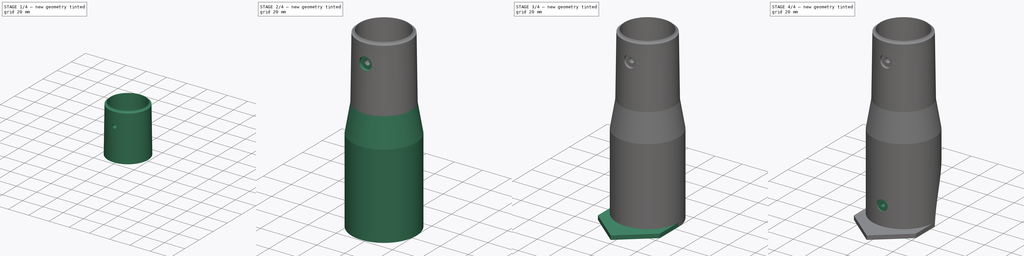
[diagram: build sequence overview — one tinted view per stage of 4, left to right]
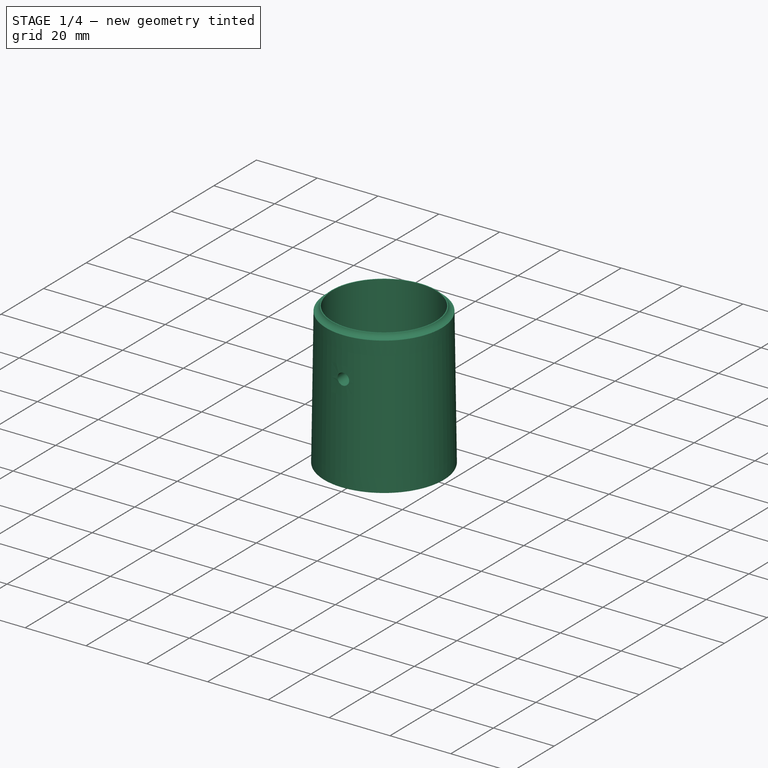
[diagram: stage 1 of 4 — iso view after this stage's code; geometry added in this stage tinted green]
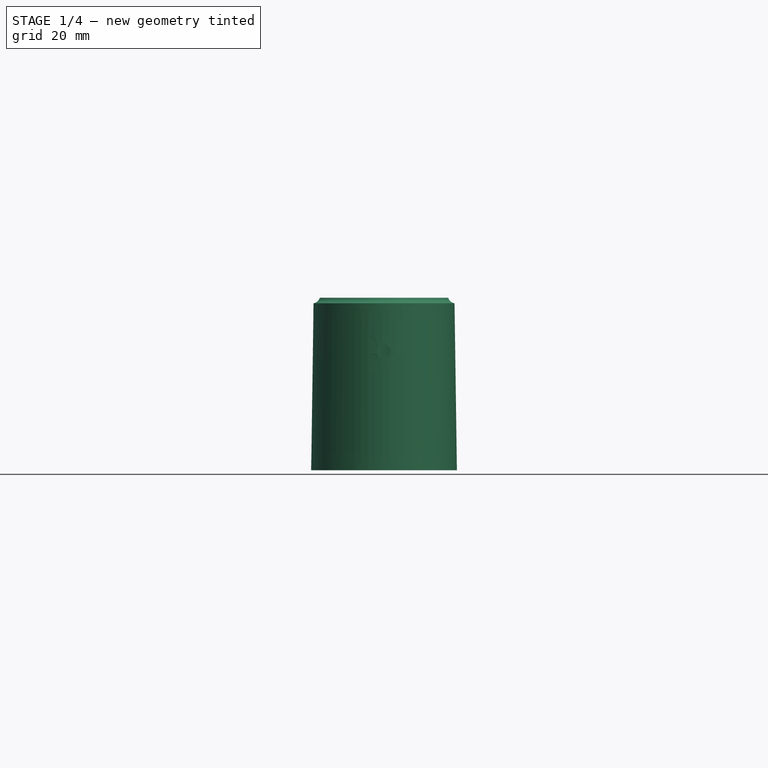
[diagram: stage 1 of 4 — front view after this stage's code; geometry added in this stage tinted green]
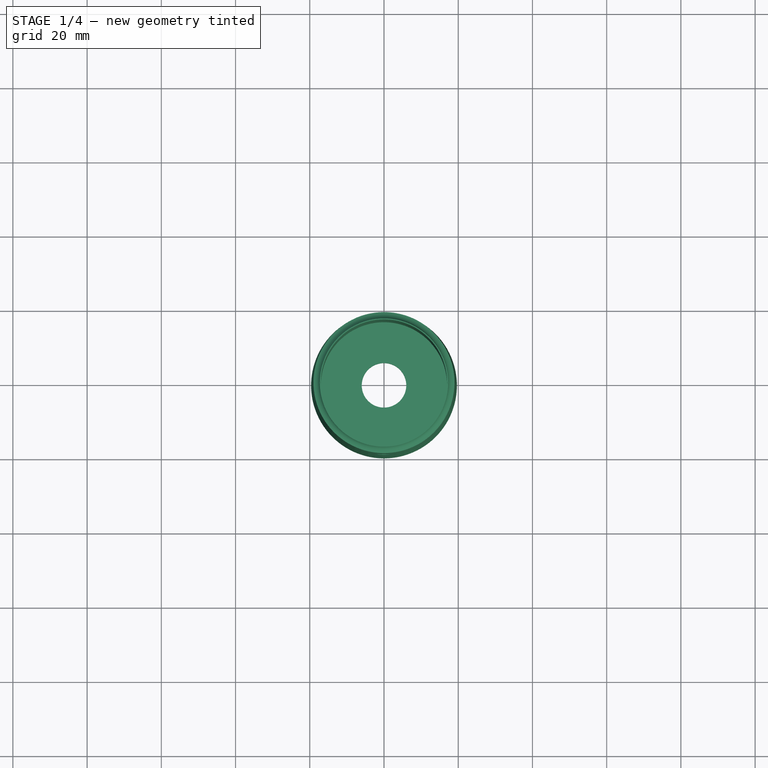
[diagram: stage 1 of 4 — top view after this stage's code; geometry added in this stage tinted green]
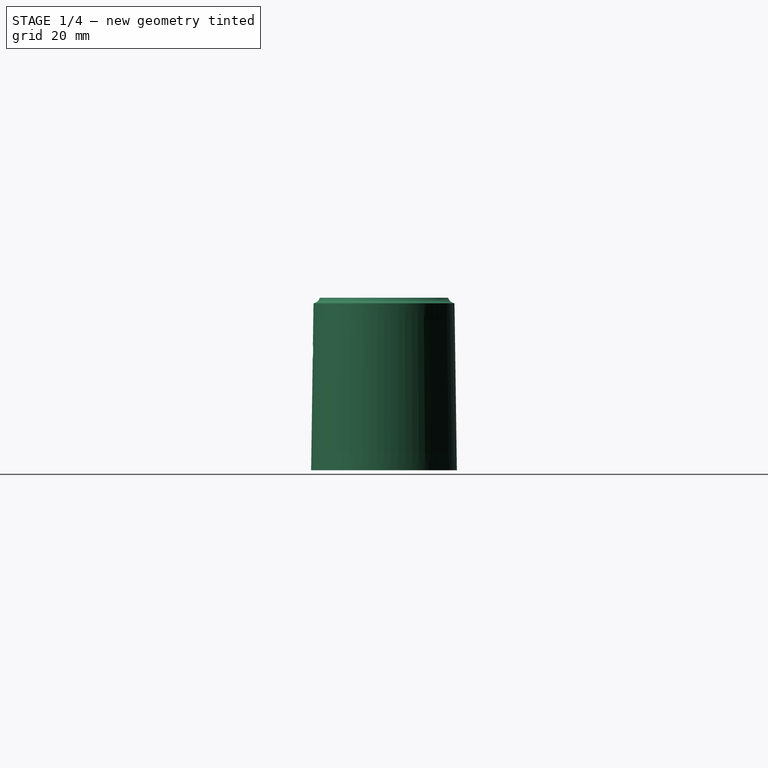
[diagram: stage 1 of 4 — right view after this stage's code; geometry added in this stage tinted green]
FCSTD DOCUMENT  (FreeCAD 1.1R20260414 (Git shallow))
Label: top-mast-mount-variable-diameter
License: All rights reserved
LicenseURL: https://en.wikipedia.org/wiki/All_rights_reserved
objects: Sketcher::SketchObject×14, PartDesign::Pocket×5, PartDesign::Pad×3, App::VarSet×1, PartDesign::Revolution×1, PartDesign::AdditiveLoft×1, PartDesign::Groove×1, PartDesign::SubtractivePipe×1, App::Point×1, PartDesign::Body×1
note: 65 computed .brp shape members not serialized (recipe doc carries the construction recipe); baked Part::Feature solids carry a one-line shape summary decoded from their .brp

FEATURE [App::VarSet] VarSet  label="Mast Mount Dimensions"
  Cable_Diameter = 4
  Mast_Diameter = 34
  Receptacle_Internal_Length = 42
  Sleeve_Wall_Thickness = 6
  Zip_Ties_Thickness = 1.8
FEATURE [Sketcher::SketchObject] Sketch169
  ArcFitTolerance = 1e-06
  AttachmentOffset = pos=(0,0,28) rot=(0,0,1;0rad)
  AttachmentSupport = -> [XZ_Plane028]
  ExternalTypes = [0]
  FullyConstrained = true
  MakeInternals = false
  MapMode = 5
  Placement = pos=(0,-28,6.2e-15) rot=(1,0,0;1.5708rad)
  _ExternalGeoVersion = 0
  expr: .AttachmentOffset.Base.z = <<Mast Mount Dimensions>>.Mast_Diameter / 2 + <<Mast Mount Dimensions>>.Sleeve_Wall_Thickness + 5 mm
  sketch-geometry (1):
    g0: Circle CenterX=0 CenterY=-63 CenterZ=0 NormalX=0 NormalY=0 NormalZ=1 AngleXU=0 Radius=1.5
  constraints (3):
    c: Diameter(g0) = 3
    c: PointOnObject(g0,g-2)
    c: Distance(g0,g-1) = 63
FEATURE [Sketcher::SketchObject] Sketch170
  ArcFitTolerance = 1e-06
  AttachmentOffset = pos=(0,0,28) rot=(0,0,1;0rad)
  AttachmentSupport = -> [XZ_Plane028]
  ExternalGeometry = -> [Sketch169]
  ExternalTypes = [0]
  FullyConstrained = true
  MakeInternals = false
  MapMode = 5
  Placement = pos=(0,-28,6.2e-15) rot=(1,0,0;1.5708rad)
  _ExternalGeoVersion = 0
  expr: .AttachmentOffset.Base.z = <<Mast Mount Dimensions>>.Mast_Diameter / 2 + <<Mast Mount Dimensions>>.Sleeve_Wall_Thickness + 5 mm
  sketch-geometry (1):
    g0: Circle CenterX=0 CenterY=-63 CenterZ=0 NormalX=0 NormalY=0 NormalZ=1 AngleXU=0 Radius=4
  constraints (2):
    c: Diameter(g0) = 8
    c: Coincident(g0,g-3)
FEATURE [Sketcher::SketchObject] Sketch157
  ArcFitTolerance = 1e-06
  AttachmentSupport = -> [YZ_Plane028]
  ExternalTypes = [0]
  FullyConstrained = true
  MakeInternals = false
  MapMode = 5
  Placement = pos=(0,0,0) rot=(0.57735,0.57735,0.57735;2.0944rad)
  _ExternalGeoVersion = 0
  expr: Constraints[8] = 68 mm + <<Mast Mount Dimensions>>.Mast_Diameter / 2
  sketch-geometry (4):
    g0: ArcOfCircle CenterX=80 CenterY=-165 CenterZ=0 NormalX=0 NormalY=0 NormalZ=1 AngleXU=0 Radius=80 StartAngle=3.14159 EndAngle=6.28319
    g1: ArcOfCircle CenterX=80 CenterY=-85 CenterZ=0 NormalX=0 NormalY=0 NormalZ=1 AngleXU=0 Radius=80 StartAngle=0 EndAngle=3.14159
    g2: LineSegment StartX=-1.42e-14 StartY=-165 StartZ=0 EndX=0 EndY=-85 EndZ=0
    g3: LineSegment StartX=160 StartY=-165 StartZ=0 EndX=160 EndY=-85 EndZ=0
  constraints (10):
    c: Tangent(g0,g2) = 1.5708
    c: Tangent(g0,g3) = -1.5708
    c: Tangent(g1,g2) = 1.5708
    c: Tangent(g1,g3) = -1.5708
    c: Equal(g0,g1)
    c: Vertical(g3)
    c: Distance(g0,g1) = 80
    c: Radius(g0) = 80
    c: Distance(g1,g-1) = 85
    c: Distance(g1,g-2) = 80
FEATURE [Sketcher::SketchObject] Sketch168
  ArcFitTolerance = 1e-06
  AttachmentOffset = pos=(0,0,-80) rot=(0,0,1;0rad)
  AttachmentSupport = -> [XY_Plane028]
  ExternalTypes = [0]
  FullyConstrained = true
  MakeInternals = false
  MapMode = 5
  Placement = pos=(0,0,-80) rot=(0,0,1;0rad)
  _ExternalGeoVersion = 0
  expr: Constraints[13] = <<Mast Mount Dimensions>>.Mast_Diameter + <<Mast Mount Dimensions>>.Sleeve_Wall_Thickness * 2
  expr: Constraints[20] = <<Mast Mount Dimensions>>.Mast_Diameter / 2 + <<Mast Mount Dimensions>>.Sleeve_Wall_Thickness / 2 - 0.15 mm
  sketch-geometry (8):
    g0: LineSegment StartX=0 StartY=-39.1493 StartZ=0 EndX=23 EndY=-19.85 EndZ=0
    g1: LineSegment StartX=23 StartY=-19.85 StartZ=0 EndX=23 EndY=-7.1e-15 EndZ=0
    g2: LineSegment StartX=-23 StartY=0 StartZ=0 EndX=-23 EndY=-19.85 EndZ=0
    g3: LineSegment StartX=-23 StartY=-19.85 StartZ=0 EndX=0 EndY=-39.1493 EndZ=0
    g4: LineSegment [constr] StartX=-23 StartY=0 StartZ=0 EndX=0 EndY=0 EndZ=0
    g5: LineSegment [constr] StartX=0 StartY=0 StartZ=0 EndX=23 EndY=-5.6e-15 EndZ=0
    g6: LineSegment [constr] StartX=-23 StartY=-19.85 StartZ=0 EndX=23 EndY=-19.85 EndZ=0
    g7: ArcOfCircle CenterX=0 CenterY=0 CenterZ=0 NormalX=0 NormalY=0 NormalZ=1 AngleXU=0 Radius=23 StartAngle=3.14159 EndAngle=6.28319
  constraints (22):
    c: PointOnObject(g0,g-2)
    c: Coincident(g1,g0)
    c: PointOnObject(g1,g-1)
    c: Vertical(g1)
    c: PointOnObject(g2,g-1)
    c: Vertical(g2)
    c: Coincident(g3,g2)
    c: Coincident(g3,g0)
    c: Coincident(g4,g2)
    c: Coincident(g4,g-1)
    c: Coincident(g5,g4)
    c: Coincident(g5,g1)
    c: Equal(g5,g4)
    c: DistanceX(g2,g1) = 46
    c: Coincident(g6,g2)
    c: Coincident(g6,g0)
    c: Horizontal(g6)
    c: Coincident(g7,g4)
    c: Coincident(g7,g1)
    c: PointOnObject(g7,g-1)
    c: DistanceY(g1,g1) = 19.85
    c: Angle(g6,g0) = 0.698132
FEATURE [Sketcher::SketchObject] Sketch167
  ArcFitTolerance = 1e-06
  AttachmentSupport = -> [YZ_Plane028]
  ExternalTypes = [0]
  FullyConstrained = true
  MakeInternals = false
  MapMode = 5
  Placement = pos=(0,0,0) rot=(0.57735,0.57735,0.57735;2.0944rad)
  _ExternalGeoVersion = 0
  expr: Constraints[2] = <<Mast Mount Dimensions>>.Mast_Diameter / 2 + <<Mast Mount Dimensions>>.Sleeve_Wall_Thickness / 2 - 0.15 mm
  sketch-geometry (2):
    g0: LineSegment StartX=9.65 StartY=8.56 StartZ=0 EndX=19.85 EndY=-20 EndZ=0
    g1: LineSegment StartX=19.85 StartY=-20 StartZ=0 EndX=19.85 EndY=-50 EndZ=0
  constraints (7):
    c: Coincident(g1,g0)
    c: Vertical(g1)
    c: Distance(g-2,g1) = 19.85
    c: Distance(g0,g-2) = 9.65
    c: DistanceY(g-1,g0) = 8.56
    c: Distance(g0,g-1) = 20
    c: DistanceY(g1,g1) = 30
FEATURE [Sketcher::SketchObject] Sketch166
  ArcFitTolerance = 1e-06
  AttachmentOffset = pos=(0,0,-40) rot=(0,0,1;0rad)
  AttachmentSupport = -> [XY_Plane028]
  ExternalTypes = [0]
  FullyConstrained = true
  MakeInternals = false
  MapMode = 5
  Placement = pos=(0,0,-40) rot=(0,0,1;0rad)
  _ExternalGeoVersion = 0
  expr: Constraints[5] = <<Mast Mount Dimensions>>.Cable_Diameter / 2
  expr: Constraints[8] = <<Mast Mount Dimensions>>.Mast_Diameter / 2 + <<Mast Mount Dimensions>>.Sleeve_Wall_Thickness / 2 - 0.15 mm
  sketch-geometry (6):
    g0: ArcOfCircle CenterX=-2 CenterY=19.85 CenterZ=0 NormalX=0 NormalY=0 NormalZ=1 AngleXU=0 Radius=2 StartAngle=1.5708 EndAngle=4.71239
    g1: ArcOfCircle CenterX=2 CenterY=19.85 CenterZ=0 NormalX=0 NormalY=0 NormalZ=1 AngleXU=0 Radius=2 StartAngle=4.71239 EndAngle=7.85398
    g2: LineSegment StartX=-2 StartY=21.85 StartZ=0 EndX=2 EndY=21.85 EndZ=0
    g3: LineSegment StartX=-2 StartY=17.85 StartZ=0 EndX=2 EndY=17.85 EndZ=0
    g4: LineSegment [constr] StartX=-2 StartY=19.85 StartZ=0 EndX=0 EndY=19.85 EndZ=0
    g5: LineSegment [constr] StartX=0 StartY=19.85 StartZ=0 EndX=2 EndY=19.85 EndZ=0
  constraints (15):
    c: Tangent(g0,g2) = 1.5708
    c: Tangent(g0,g3) = -1.5708
    c: Tangent(g1,g2) = 1.5708
    c: Tangent(g1,g3) = -1.5708
    c: Equal(g0,g1)
    c: Radius(g0) = 2
    c: Horizontal(g2)
    c: DistanceX(g0,g1) = 4
    c: Distance(g1,g-1) = 19.85
    c: Coincident(g4,g0)
    c: PointOnObject(g4,g-2)
    c: Horizontal(g4)
    c: Coincident(g5,g4)
    c: Coincident(g5,g1)
    c: Equal(g5,g4)
FEATURE [Sketcher::SketchObject] Sketch158
  ArcFitTolerance = 1e-06
  AttachmentSupport = -> [XZ_Plane028]
  ExternalTypes = [0]
  FullyConstrained = true
  MakeInternals = false
  MapMode = 5
  Placement = pos=(0,0,0) rot=(1,0,0;1.5708rad)
  _ExternalGeoVersion = 0
  expr: Constraints[12] = <<Mast Mount Dimensions>>.Zip_Ties_Thickness
  expr: Constraints[15] = <<Mast Mount Dimensions>>.Mast_Diameter / 2 + <<Mast Mount Dimensions>>.Sleeve_Wall_Thickness / 2
  sketch-geometry (12):
    g0: LineSegment [constr] StartX=0 StartY=-54 StartZ=0 EndX=20 EndY=-54 EndZ=0
    g1: LineSegment StartX=19.1 StartY=-58 StartZ=0 EndX=20.9 EndY=-58 EndZ=0
    g2: LineSegment StartX=20.9 StartY=-58 StartZ=0 EndX=20.9 EndY=-50 EndZ=0
    g3: LineSegment StartX=20.9 StartY=-50 StartZ=0 EndX=19.1 EndY=-50 EndZ=0
    g4: LineSegment StartX=19.1 StartY=-50 StartZ=0 EndX=19.1 EndY=-58 EndZ=0
    g5: GeomPoint [constr] X=20 Y=-54 Z=0
    g6: LineSegment StartX=19.1 StartY=-78 StartZ=0 EndX=20.9 EndY=-78 EndZ=0
    g7: LineSegment StartX=20.9 StartY=-78 StartZ=0 EndX=20.9 EndY=-70 EndZ=0
    g8: LineSegment StartX=20.9 StartY=-70 StartZ=0 EndX=19.1 EndY=-70 EndZ=0
    g9: LineSegment StartX=19.1 StartY=-70 StartZ=0 EndX=19.1 EndY=-78 EndZ=0
    g10: GeomPoint [constr] X=20 Y=-74 Z=0
    g11: LineSegment [constr] StartX=20 StartY=-74 StartZ=0 EndX=0 EndY=-74 EndZ=0
  constraints (32):
    c: PointOnObject(g0,g-2)
    c: Horizontal(g0)
    c: Distance(g0,g-1) = 54
    c: Coincident(g1,g2)
    c: Coincident(g2,g3)
    c: Coincident(g3,g4)
    c: Coincident(g4,g1)
    c: Horizontal(g1)
    c: Horizontal(g3)
    c: Vertical(g2)
    c: Vertical(g4)
    c: Symmetric(g3,g1,g5)
    c: Distance(g2,g4) = 1.8
    c: Distance(g1,g3) = 8
    c: Coincident(g5,g0)
    c: DistanceX(g0,g0) = 20
    c: Coincident(g6,g7)
    c: Coincident(g7,g8)
    c: Coincident(g8,g9)
    c: Coincident(g9,g6)
    c: Horizontal(g6)
    c: Horizontal(g8)
    c: Vertical(g7)
    c: Vertical(g9)
    c: Symmetric(g8,g6,g10)
    c: Equal(g8,g3)
    c: Equal(g2,g7)
    c: Coincident(g11,g10)
    c: PointOnObject(g11,g-2)
    c: Horizontal(g11)
    c: Equal(g11,g0)
    c: DistanceY(g10,g0) = 20
FEATURE [Sketcher::SketchObject] Sketch156
  ArcFitTolerance = 1e-06
  AttachmentOffset = pos=(0,0,-20) rot=(0,0,1;0rad)
  AttachmentSupport = -> [XY_Plane028]
  ExternalTypes = [0]
  FullyConstrained = true
  MakeInternals = false
  MapMode = 5
  Placement = pos=(0,0,-20) rot=(0,0,1;0rad)
  _ExternalGeoVersion = 0
  expr: Constraints[1] = <<Mast Mount Dimensions>>.Mast_Diameter + 0.2 mm
  expr: Constraints[3] = <<Mast Mount Dimensions>>.Mast_Diameter + <<Mast Mount Dimensions>>.Sleeve_Wall_Thickness * 2
  sketch-geometry (2):
    g0: Circle CenterX=0 CenterY=0 CenterZ=0 NormalX=0 NormalY=0 NormalZ=1 AngleXU=0 Radius=17.1
    g1: Circle CenterX=0 CenterY=0 CenterZ=0 NormalX=0 NormalY=0 NormalZ=1 AngleXU=0 Radius=23
  constraints (4):
    c: Coincident(g0,g-1)
    c: Diameter(g0) = 34.2
    c: Coincident(g1,g0)
    c: Diameter(g1) = 46
FEATURE [Sketcher::SketchObject] Sketch164
  ArcFitTolerance = 1e-06
  AttachmentOffset = pos=(0,0,-20) rot=(0,0,1;0rad)
  AttachmentSupport = -> [XY_Plane028]
  ExternalTypes = [0]
  FullyConstrained = true
  MakeInternals = false
  MapMode = 5
  Placement = pos=(0,0,-20) rot=(0,0,1;0rad)
  _ExternalGeoVersion = 0
  expr: Constraints[2] = <<Mast Mount Dimensions>>.Mast_Diameter + <<Mast Mount Dimensions>>.Sleeve_Wall_Thickness * 2
  expr: Constraints[3] = <<Mast Mount Dimensions>>.Mast_Diameter
  sketch-geometry (2):
    g0: Circle CenterX=0 CenterY=0 CenterZ=0 NormalX=0 NormalY=0 NormalZ=1 AngleXU=0 Radius=23
    g1: Circle CenterX=0 CenterY=0 CenterZ=0 NormalX=0 NormalY=0 NormalZ=1 AngleXU=0 Radius=17
  constraints (4):
    c: Coincident(g0,g-1)
    c: Coincident(g1,g0)
    c: Diameter(g0) = 46
    c: Diameter(g1) = 34
FEATURE [Sketcher::SketchObject] Sketch152
  ArcFitTolerance = 1e-06
  AttachmentSupport = -> [XY_Plane028]
  ExternalTypes = [0]
  FullyConstrained = true
  MakeInternals = false
  MapMode = 5
  _ExternalGeoVersion = 0
  sketch-geometry (2):
    g0: Circle CenterX=0 CenterY=0 CenterZ=0 NormalX=0 NormalY=0 NormalZ=1 AngleXU=0 Radius=19.6
    g1: Circle CenterX=0 CenterY=0 CenterZ=0 NormalX=0 NormalY=0 NormalZ=1 AngleXU=0 Radius=6
  constraints (4):
    c: Diameter(g0) = 39.2
    c: Coincident(g0,g-1)
    c: Diameter(g1) = 12
    c: Coincident(g1,g0)
FEATURE [Sketcher::SketchObject] Sketch148
  ArcFitTolerance = 1e-06
  AttachmentOffset = pos=(0,0,20) rot=(0,0,1;0rad)
  AttachmentSupport = -> [XZ_Plane028]
  ExternalTypes = [0]
  FullyConstrained = true
  MakeInternals = false
  MapMode = 5
  Placement = pos=(0,-20,4.4e-15) rot=(1,0,0;1.5708rad)
  _ExternalGeoVersion = 0
  expr: Constraints[2] = <<Mast Mount Dimensions>>.Receptacle_Internal_Length - 10 mm
  sketch-geometry (1):
    g0: Circle CenterX=0 CenterY=32 CenterZ=0 NormalX=0 NormalY=0 NormalZ=1 AngleXU=0 Radius=1.9
  constraints (3):
    c: Diameter(g0) = 3.8
    c: PointOnObject(g0,g-2)
    c: Distance(g0,g-1) = 32
FEATURE [Sketcher::SketchObject] Sketch149
  ArcFitTolerance = 1e-06
  AttachmentOffset = pos=(0,0,20) rot=(0,0,1;0rad)
  AttachmentSupport = -> [XZ_Plane028]
  ExternalGeometry = -> [Sketch148]
  ExternalTypes = [0]
  FullyConstrained = true
  MakeInternals = false
  MapMode = 5
  Placement = pos=(0,-20,4.4e-15) rot=(1,0,0;1.5708rad)
  _ExternalGeoVersion = 0
  sketch-geometry (1):
    g0: Circle CenterX=0 CenterY=32 CenterZ=0 NormalX=0 NormalY=0 NormalZ=1 AngleXU=0 Radius=4.5
  constraints (2):
    c: Diameter(g0) = 9
    c: Coincident(g0,g-3)
FEATURE [Sketcher::SketchObject] Sketch141
  ArcFitTolerance = 1e-06
  AttachmentOffset = pos=(0,0,0) rot=(0,0,1;1.5708rad)
  AttachmentSupport = -> [XY_Plane028]
  ExternalTypes = [0]
  FullyConstrained = true
  MakeInternals = false
  MapMode = 2
  Placement = pos=(0,0,0) rot=(0,0,1;1.5708rad)
  _ExternalGeoVersion = 0
  sketch-geometry (4):
    g0: LineSegment [constr] StartX=0 StartY=0 StartZ=0 EndX=-14 EndY=0 EndZ=0
    g1: LineSegment StartX=-14 StartY=0 StartZ=0 EndX=-14 EndY=12.8452 EndZ=0
    g2: LineSegment StartX=-14 StartY=0 StartZ=0 EndX=-14 EndY=-12.8452 EndZ=0
    g3: ArcOfCircle CenterX=0 CenterY=0 CenterZ=0 NormalX=0 NormalY=0 NormalZ=1 AngleXU=0 Radius=19 StartAngle=2.39918 EndAngle=3.884
  constraints (11):
    c: Distance(g0) = 14
    c: Coincident(g0,g-1)
    c: PointOnObject(g0,g-1)
    c: Coincident(g1,g0)
    c: Vertical(g1)
    c: Coincident(g2,g0)
    c: Vertical(g2)
    c: Coincident(g3,g0)
    c: Coincident(g3,g1)
    c: Coincident(g3,g2)
    c: Radius(g3) = 19
FEATURE [Sketcher::SketchObject] Sketch102
  ArcFitTolerance = 1e-06
  AttachmentSupport = -> [XZ_Plane028]
  ExternalTypes = [0]
  FullyConstrained = true
  MakeInternals = false
  MapMode = 5
  Placement = pos=(0,0,0) rot=(1,0,0;1.5708rad)
  _ExternalGeoVersion = 0
  expr: Constraints[5] = <<Mast Mount Dimensions>>.Receptacle_Internal_Length
  sketch-geometry (10):
    g0: LineSegment StartX=6 StartY=3 StartZ=0 EndX=17 EndY=3 EndZ=0
    g1: LineSegment [constr] StartX=17 StartY=3 StartZ=0 EndX=19.6 EndY=3 EndZ=0
    g2: LineSegment StartX=17 StartY=3 StartZ=0 EndX=17 EndY=44.9957 EndZ=0
    g3: LineSegment [constr] StartX=17 StartY=44.9957 StartZ=0 EndX=19 EndY=44.9957 EndZ=0
    g4: LineSegment StartX=19.6429 StartY=0 StartZ=0 EndX=19 EndY=44.9957 EndZ=0
    g5: LineSegment StartX=17 StartY=44.9957 StartZ=0 EndX=17 EndY=46.4957 EndZ=0
    g6: LineSegment StartX=17 StartY=46.4957 StartZ=0 EndX=17.3 EndY=46.4957 EndZ=0
    g7: LineSegment StartX=6 StartY=3 StartZ=0 EndX=6 EndY=0 EndZ=0
    g8: LineSegment StartX=6 StartY=0 StartZ=0 EndX=19.6429 EndY=0 EndZ=0
    g9: ArcOfCircle CenterX=19.3975 CenterY=47.1595 CenterZ=0 NormalX=0 NormalY=0 NormalZ=1 AngleXU=0 Radius=2.2 StartAngle=3.4481 EndAngle=4.53072
  constraints (30):
    c: Coincident(g1,g0)
    c: Horizontal(g1)
    c: Horizontal(g0)
    c: Coincident(g2,g0)
    c: Vertical(g2)
    c: Distance(g4,g1) = 42
    c: DistanceX(g-1,g0) = 6
    c: Coincident(g3,g2)
    c: Horizontal(g3)
    c: Vertical(g5)
    c: Coincident(g5,g2)
    c: Distance(g5,g5) = 1.5
    c: Coincident(g3,g4)
    c: Coincident(g6,g5)
    c: Horizontal(g6)
    c: Distance(g6,g6) = 0.3
    c: DistanceX(g3,g3) = 2
    c: Distance(g1,g-2) = 19.6
    c: Distance(g0,g-2) = 17
    c: PointOnObject(g4,g-1)
    c: Coincident(g7,g0)
    c: Vertical(g7)
    c: PointOnObject(g7,g-1)
    c: Coincident(g8,g7)
    c: Coincident(g8,g4)
    c: DistanceY(g7,g7) = 3
    c: PointOnObject(g1,g4)
    c: Coincident(g9,g6)
    c: Coincident(g9,g3)
    c: Radius(g9) = 2.2
FEATURE [PartDesign::Revolution] Revolution020  label="Receptacle"
  Angle = 360
  Angle2 = 60
  Axis = (0,2e-16,1)
  Base = (0,0,0)
  FuseOrder = 1
  Placement = pos=(0,0,0) rot=(1,0,0;1.5708rad)
  Profile = -> Sketch102
  ReferenceAxis = -> Sketch102 [V_Axis]
  Reversed = true
  Suppressed = false
  Type = 0
FEATURE [PartDesign::Pad] Pad002  label="Receptacle-keying"
  BaseFeature = -> Revolution020
  Direction = (0,0,1)
  Length = 37
  Length2 = 10
  Placement = pos=(0,0,0) rot=(1,0,0;1.5708rad)
  Profile = -> Sketch141
  ReferenceAxis = -> Sketch141 [N_Axis]
  SideType = 0
  Suppressed = false
  Type = 0
  Type2 = 0
  expr: Length = <<Mast Mount Dimensions>>.Receptacle_Internal_Length - 5 mm
FEATURE [PartDesign::Pocket] Pocket002  label="Receptacle Screw Hole"
  BaseFeature = -> Pad002
  Direction = (0,1,-2e-16)
  Length = 10
  Length2 = 5
  Placement = pos=(0,0,0) rot=(1,0,0;1.5708rad)
  Profile = -> Sketch148
  ReferenceAxis = -> Sketch148 [N_Axis]
  SideType = 0
  Suppressed = false
  Type = 0
  Type2 = 0
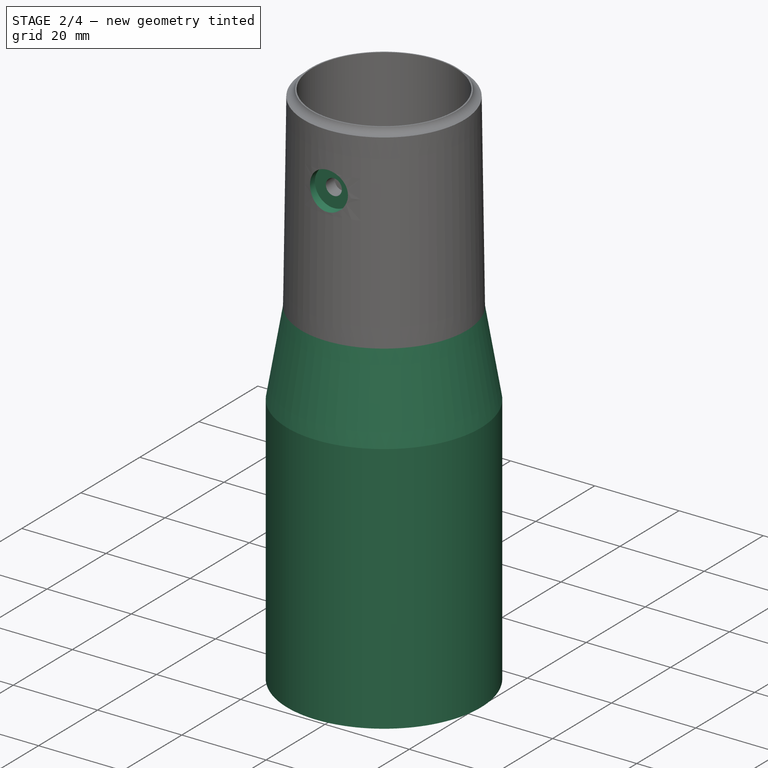
[diagram: stage 2 of 4 — iso view after this stage's code; geometry added in this stage tinted green]
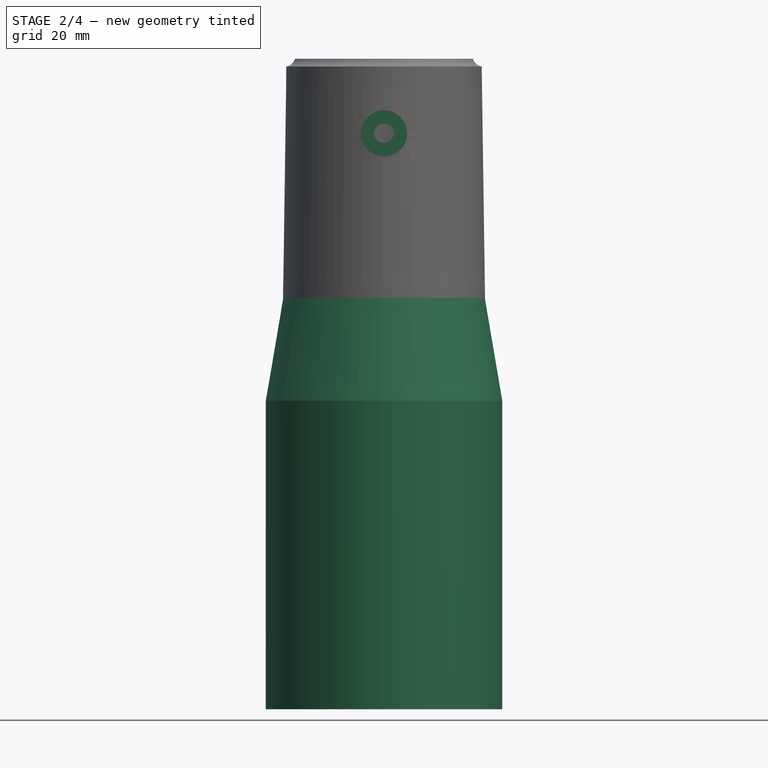
[diagram: stage 2 of 4 — front view after this stage's code; geometry added in this stage tinted green]
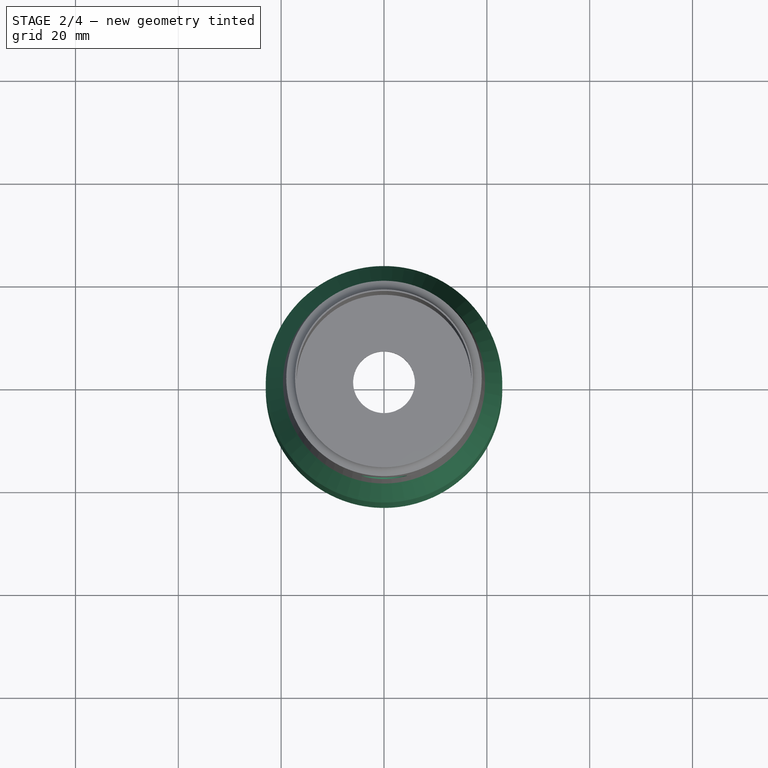
[diagram: stage 2 of 4 — top view after this stage's code; geometry added in this stage tinted green]
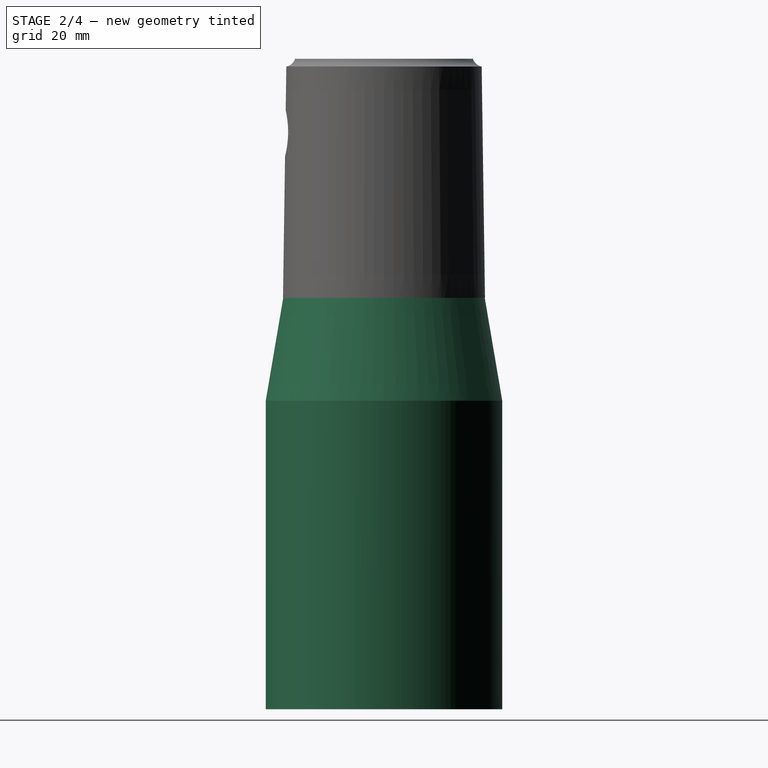
[diagram: stage 2 of 4 — right view after this stage's code; geometry added in this stage tinted green]
FEATURE [PartDesign::Pocket] Pocket053  label="Receptacle Screw Bore"
  BaseFeature = -> Pocket002
  Direction = (0,1,-2e-16)
  Length = 3
  Length2 = 5
  Placement = pos=(0,0,0) rot=(1,0,0;1.5708rad)
  Profile = -> Sketch149 [Edge1]
  ReferenceAxis = -> Sketch149 [N_Axis]
  SideType = 0
  Suppressed = false
  Type = 0
  Type2 = 0
FEATURE [PartDesign::AdditiveLoft] AdditiveLoft001  label="Intermediate Cone"
  BaseFeature = -> Pocket053
  Closed = false
  Placement = pos=(0,0,0) rot=(1,0,0;1.5708rad)
  Profile = -> Sketch152
  Ruled = false
  Sections = -> [Sketch164]
  Suppressed = false
FEATURE [PartDesign::Pad] Pad  label="Sleeve Pad"
  BaseFeature = -> AdditiveLoft001
  Direction = (0,0,1)
  Length = 60
  Length2 = 10
  Placement = pos=(0,0,0) rot=(1,0,0;1.5708rad)
  Profile = -> Sketch156
  ReferenceAxis = -> Sketch156 [N_Axis]
  Reversed = true
  SideType = 0
  Suppressed = false
  Type = 0
  Type2 = 0
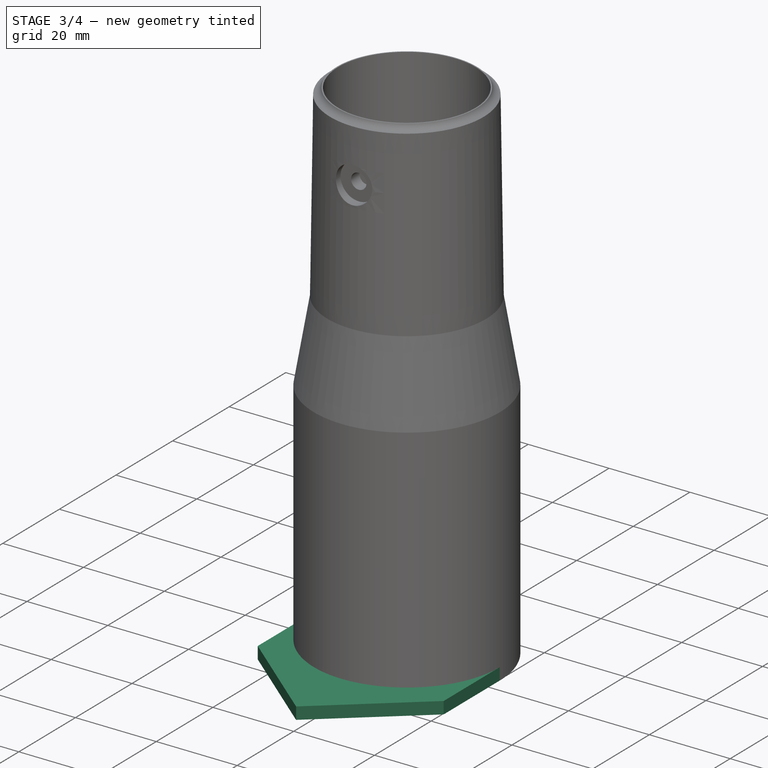
[diagram: stage 3 of 4 — iso view after this stage's code; geometry added in this stage tinted green]
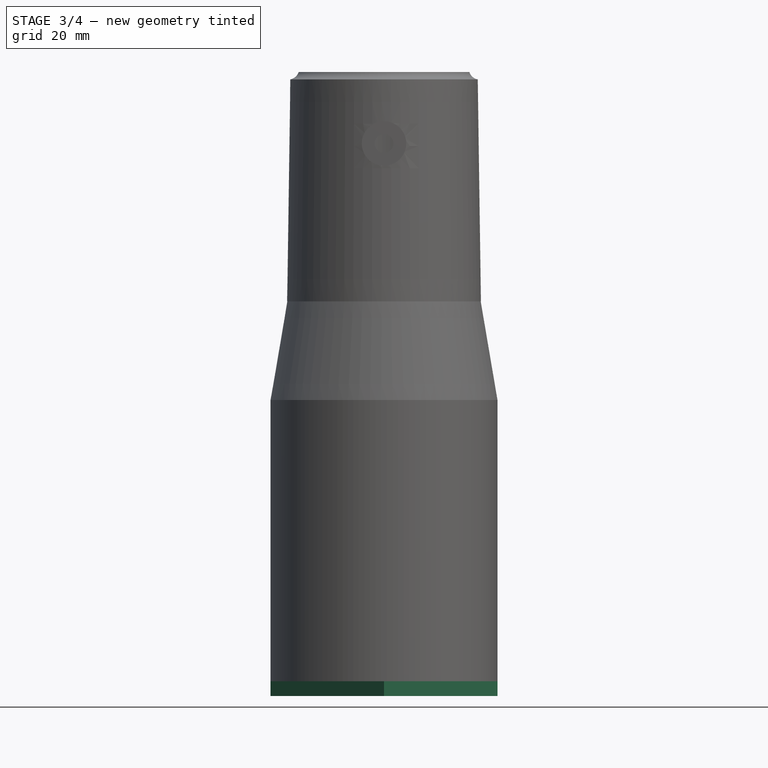
[diagram: stage 3 of 4 — front view after this stage's code; geometry added in this stage tinted green]
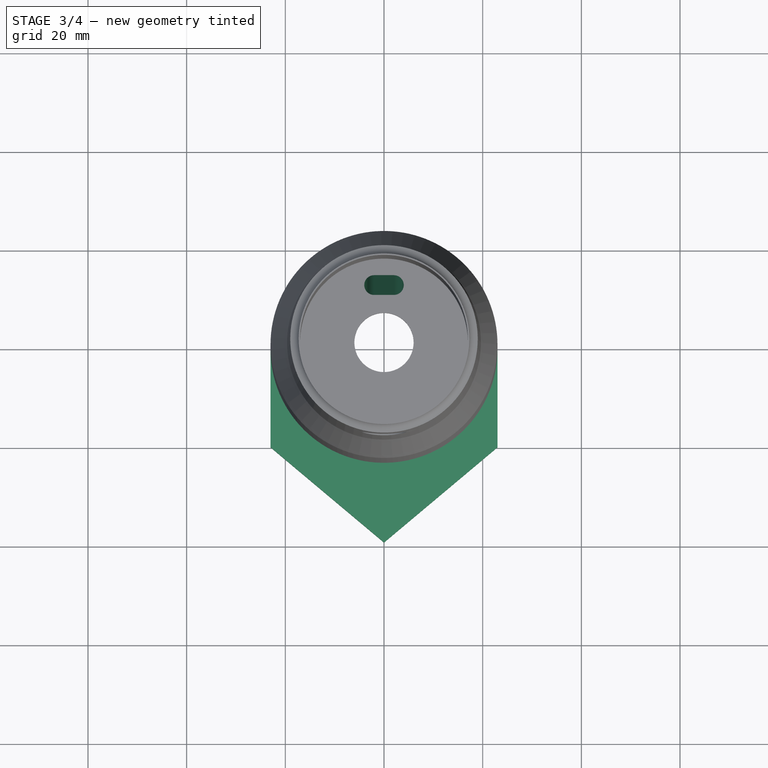
[diagram: stage 3 of 4 — top view after this stage's code; geometry added in this stage tinted green]
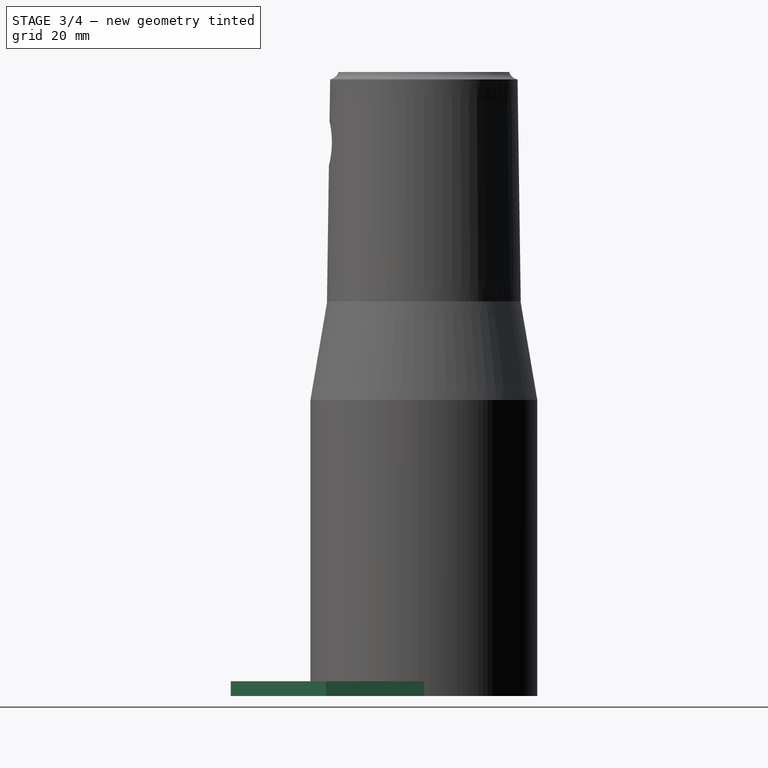
[diagram: stage 3 of 4 — right view after this stage's code; geometry added in this stage tinted green]
FEATURE [PartDesign::Groove] Groove004  label="Zip Ties"
  Angle = 360
  Angle2 = 60
  Axis = (0,2e-16,1)
  Base = (0,0,0)
  BaseFeature = -> Pad
  Placement = pos=(0,0,0) rot=(1,0,0;1.5708rad)
  Profile = -> Sketch158
  ReferenceAxis = -> Sketch158 [V_Axis]
  Suppressed = false
  Type = 0
FEATURE [PartDesign::SubtractivePipe] SubtractivePipe  label="Wiring Conduit"
  AuxiliaryCurvilinear = true
  AuxiliarySpineTangent = false
  BaseFeature = -> Groove004
  Binormal = (0,0,0)
  Mode = 0
  Placement = pos=(0,0,0) rot=(1,0,0;1.5708rad)
  Profile = -> Sketch166
  Spine = -> Sketch167
  SpineTangent = false
  Suppressed = false
  Transformation = 0
  Transition = 0
FEATURE [PartDesign::Pad] Pad001  label="Arrow"
  BaseFeature = -> SubtractivePipe
  Direction = (0,0,1)
  Length = 3
  Length2 = 10
  Placement = pos=(0,0,0) rot=(1,0,0;1.5708rad)
  Profile = -> Sketch168
  ReferenceAxis = -> Sketch168 [N_Axis]
  SideType = 0
  Suppressed = false
  Type = 0
  Type2 = 0
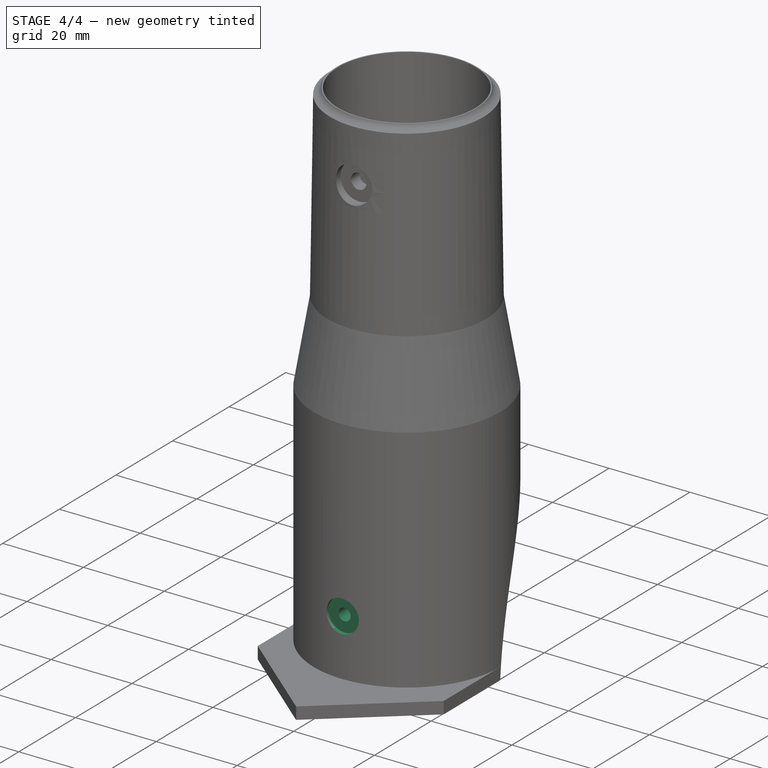
[diagram: stage 4 of 4 — iso view after this stage's code; geometry added in this stage tinted green]
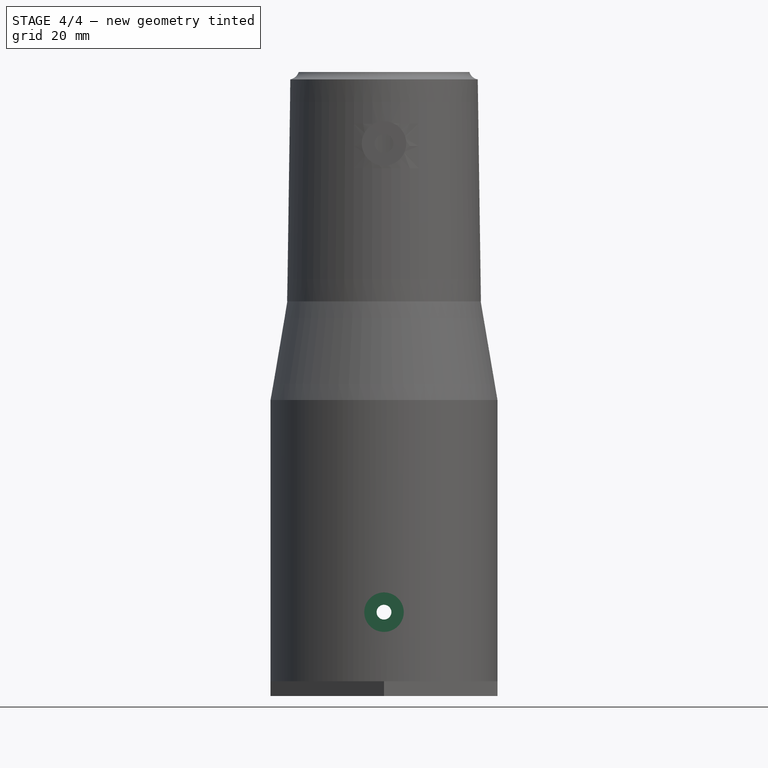
[diagram: stage 4 of 4 — front view after this stage's code; geometry added in this stage tinted green]
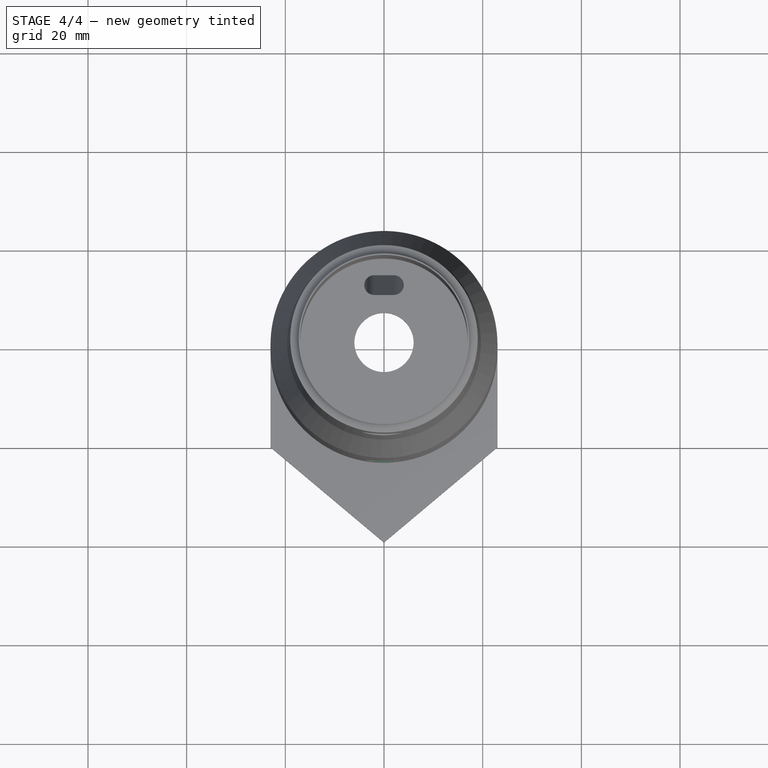
[diagram: stage 4 of 4 — top view after this stage's code; geometry added in this stage tinted green]
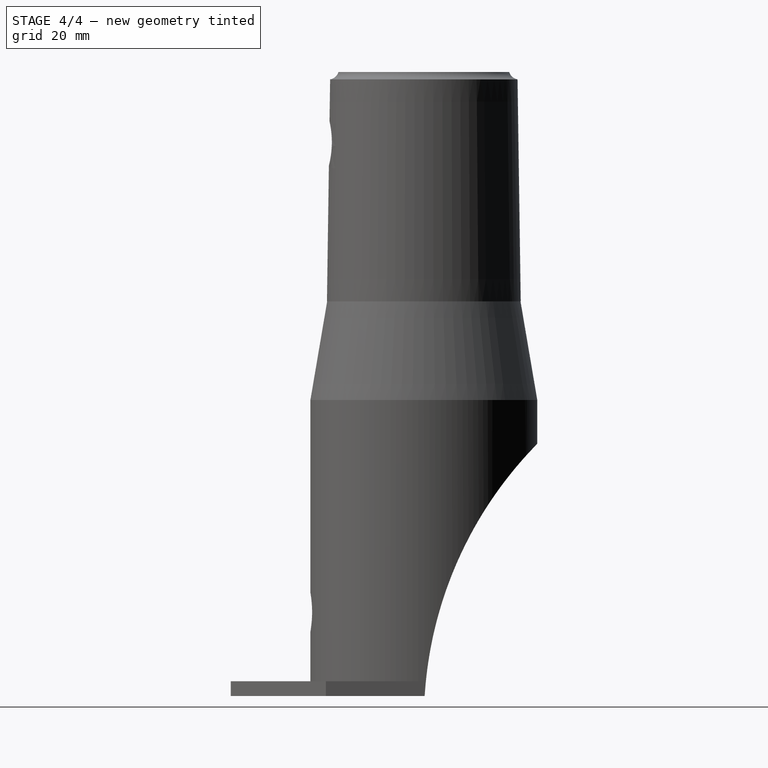
[diagram: stage 4 of 4 — right view after this stage's code; geometry added in this stage tinted green]
FEATURE [PartDesign::Pocket] Pocket001  label="Sleeve Opening Arc"
  BaseFeature = -> Pad001
  Direction = (-1,0,0)
  Length = 60
  Length2 = 5
  Placement = pos=(0,0,0) rot=(1,0,0;1.5708rad)
  Profile = -> Sketch157
  ReferenceAxis = -> Sketch157 [N_Axis]
  SideType = 2
  Suppressed = false
  Type = 1
  Type2 = 0
FEATURE [PartDesign::Pocket] Pocket003  label="Sleeve Screw Hole"
  BaseFeature = -> Pocket001
  Direction = (0,1,-2e-16)
  Length = 20
  Length2 = 5
  Placement = pos=(0,0,0) rot=(1,0,0;1.5708rad)
  Profile = -> Sketch169
  ReferenceAxis = -> Sketch169 [N_Axis]
  SideType = 0
  Suppressed = false
  Type = 0
  Type2 = 0
FEATURE [PartDesign::Pocket] Pocket054  label="Sleeve Screw Bore"
  BaseFeature = -> Pocket003
  Direction = (0,1,-2e-16)
  Length = 6
  Length2 = 5
  Placement = pos=(0,0,0) rot=(1,0,0;1.5708rad)
  Profile = -> Sketch170
  ReferenceAxis = -> Sketch170 [N_Axis]
  SideType = 0
  Suppressed = false
  Type = 0
  Type2 = 0
FEATURE [App::Point] Origin038  label="Origin"
  Role = Origin
FEATURE [PartDesign::Body] Body021  label="1-top-mast-mount"
  AllowCompound = false
  Group = -> [Sketch102,Revolution020,Pad002,Pocket002,Pocket053,AdditiveLoft001,Sketch141,Sketch148,Sketch149,Sketch152,Sketch156,Sketch157,Sketch158,Sketch164,Pad,Groove004,Sketch166,Sketch167,SubtractivePipe,Sketch168,Pad001,Pocket001,Sketch169,Pocket003,Sketch170,Pocket054,VarSet]
  Origin = -> Origin028
  Tip = -> Pocket054
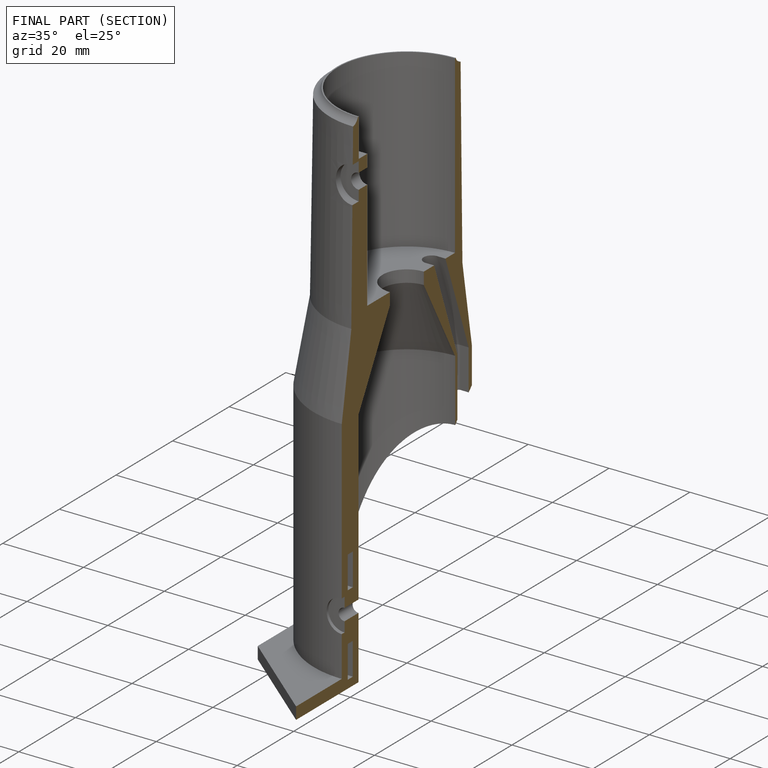
[diagram: finished part — half-section view (interior)]
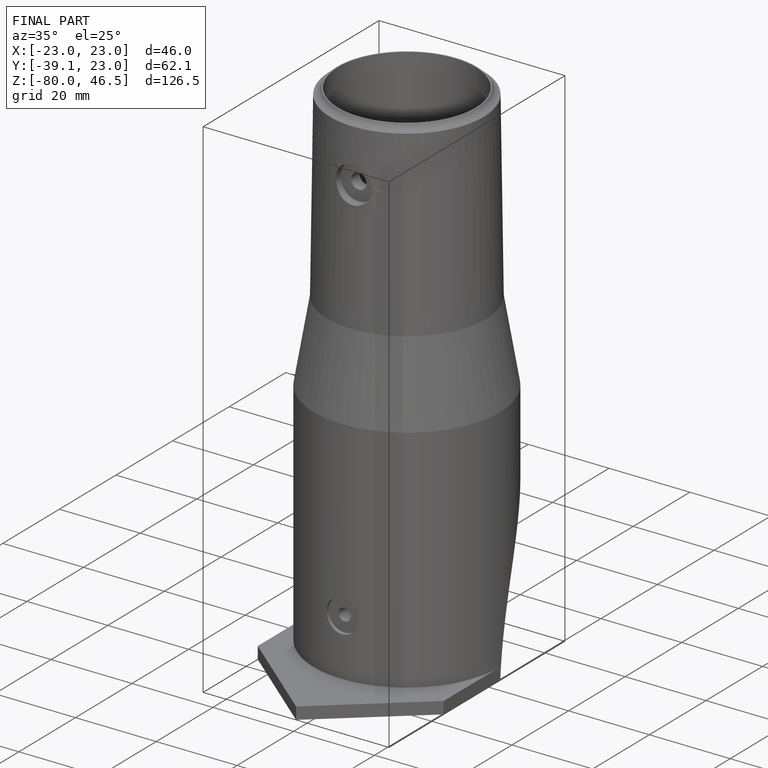
[diagram: finished part — iso view with bounding-box wireframe]
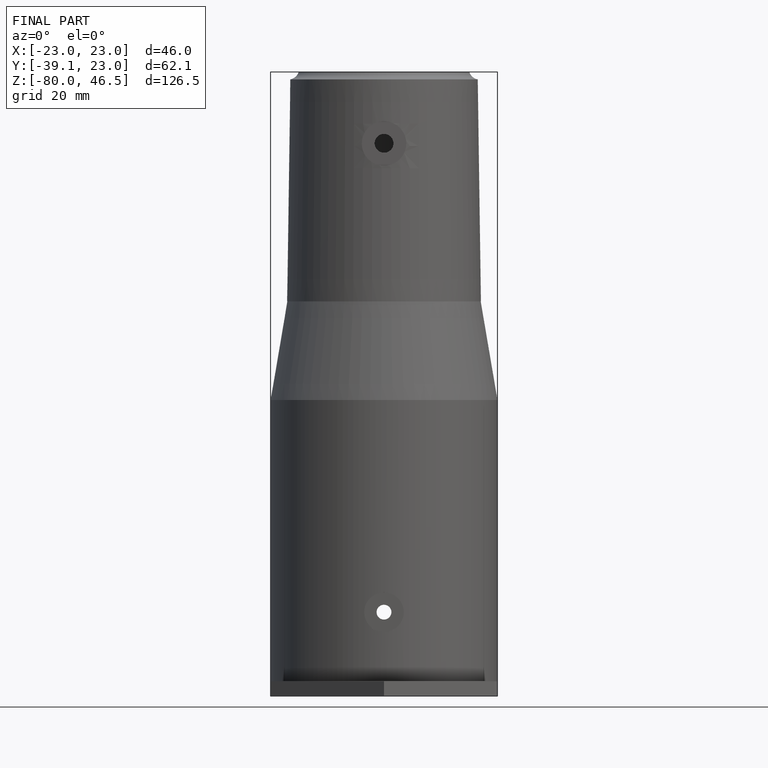
[diagram: finished part — front view with bounding-box wireframe]
